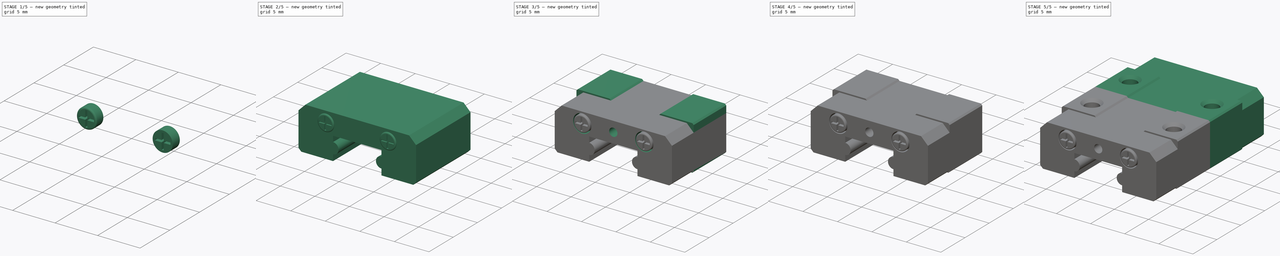
[diagram: build sequence overview — one tinted view per stage of 5, left to right]
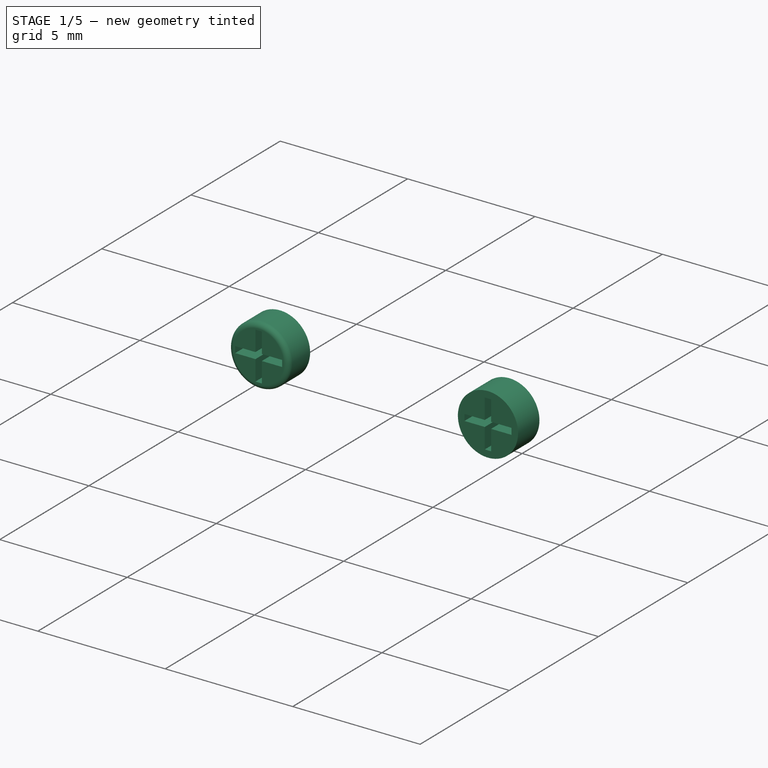
[diagram: stage 1 of 5 — iso view after this stage's code; geometry added in this stage tinted green]
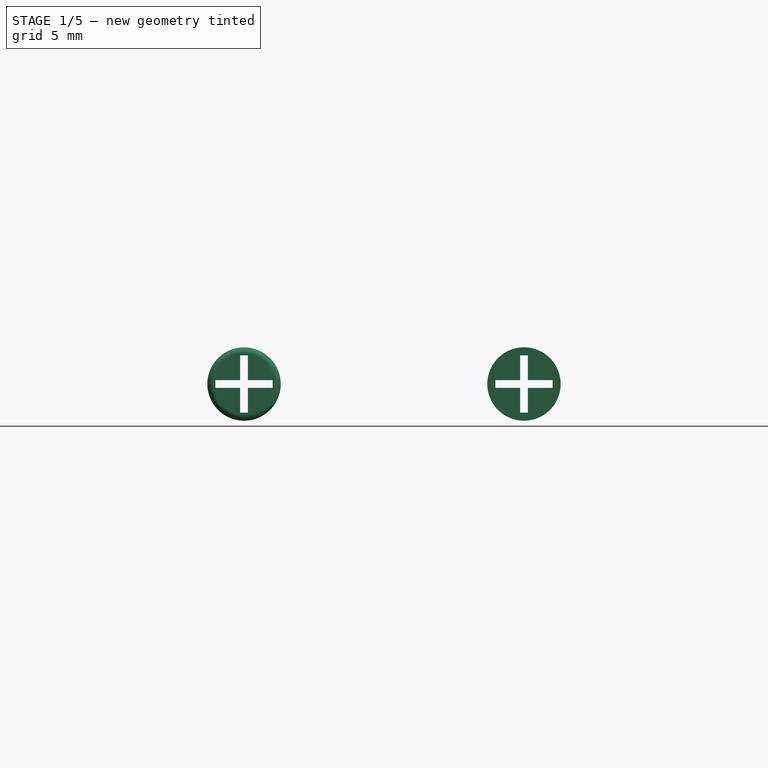
[diagram: stage 1 of 5 — front view after this stage's code; geometry added in this stage tinted green]
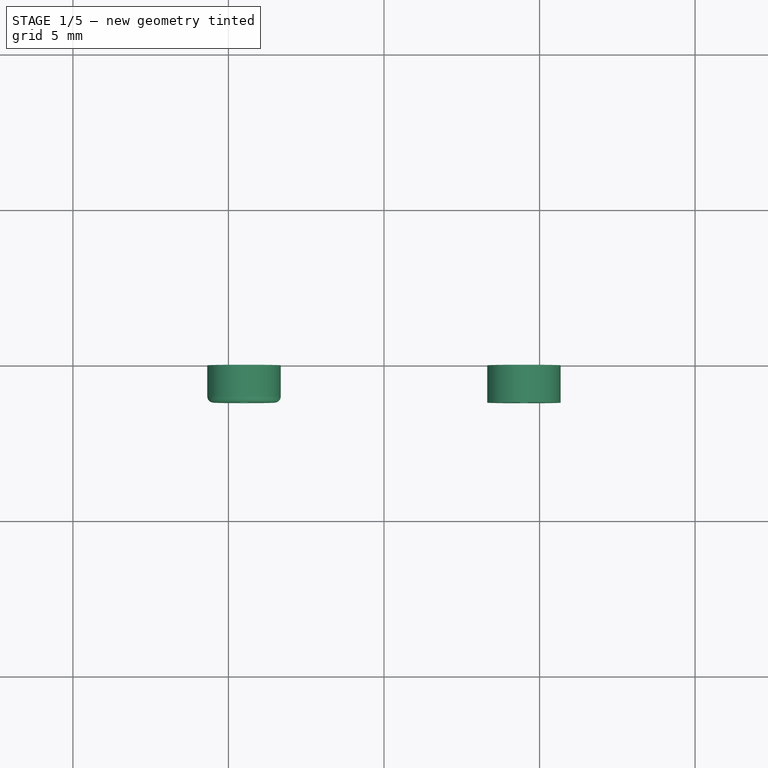
[diagram: stage 1 of 5 — top view after this stage's code; geometry added in this stage tinted green]
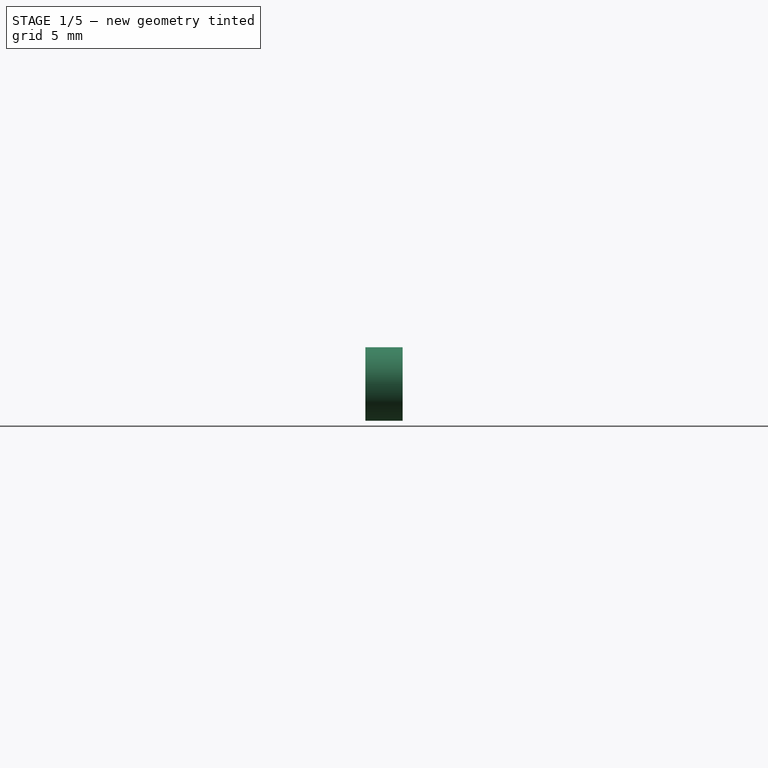
[diagram: stage 1 of 5 — right view after this stage's code; geometry added in this stage tinted green]
FCSTD DOCUMENT  (FreeCAD 0.20R)
Label: LinearSlide-MGN7-12x-Block
License: Creative Commons Attribution-ShareAlike
LicenseURL: http://creativecommons.org/licenses/by-sa/4.0/
objects: Sketcher::SketchObject×8, PartDesign::Body×5, PartDesign::Pad×4, Part::MultiFuse×4, PartDesign::Pocket×2, PartDesign::Revolution×2, PartDesign::Fillet×2, Spreadsheet::Sheet×1, Part::Cut×1, Part::Mirroring×1
note: 39 computed .brp shape members not serialized (recipe doc carries the construction recipe); baked Part::Feature solids carry a one-line shape summary decoded from their .brp

FEATURE [Sketcher::SketchObject] Sketch009
  FullyConstrained = true
  MapMode = 5
  Placement = pos=(0,0,0) rot=(1,0,0;1.5708rad)
  Support = -> [XZ_Plane004]
  expr: Constraints[0] = <<Set MGN Block Parameters>>.coverScrewDiameter - 0.3mm
  expr: Constraints[1] = <<Set MGN Block Parameters>>.coverScrewHeight
  expr: Constraints[2] = <<Set MGN Block Parameters>>.coverScrewLength / 2
  expr: Constraints[3] = <<Set MGN Block Parameters>>.coverScrewDiameter - 0.8mm
  expr: Constraints[4] = <<Set MGN Block Parameters>>.coverScrewHeight
  expr: Constraints[5] = <<Set MGN Block Parameters>>.coverScrewLength / 2
  sketch-geometry (14):
    g0: Circle CenterX=-4.5 CenterY=4.75 CenterZ=0 NormalX=0 NormalY=0 NormalZ=1 AngleXU=0 Radius=1.18
    g1: Circle CenterX=-4.5 CenterY=4.75 CenterZ=0 NormalX=0 NormalY=0 NormalZ=1 AngleXU=0 Radius=0.93
    g2: LineSegment StartX=-4.625 StartY=5.67156 StartZ=0 EndX=-4.375 EndY=5.67156 EndZ=0
    g3: LineSegment StartX=-4.375 StartY=5.67156 StartZ=0 EndX=-4.375 EndY=4.875 EndZ=0
    g4: LineSegment StartX=-4.375 StartY=4.875 StartZ=0 EndX=-3.57844 EndY=4.875 EndZ=0
    g5: LineSegment StartX=-3.57844 StartY=4.875 StartZ=0 EndX=-3.57844 EndY=4.625 EndZ=0
    g6: LineSegment StartX=-3.57844 StartY=4.625 StartZ=0 EndX=-4.375 EndY=4.625 EndZ=0
    g7: LineSegment StartX=-4.375 StartY=4.625 StartZ=0 EndX=-4.375 EndY=3.82844 EndZ=0
    g8: LineSegment StartX=-4.375 StartY=3.82844 StartZ=0 EndX=-4.625 EndY=3.82844 EndZ=0
    g9: LineSegment StartX=-4.625 StartY=3.82844 StartZ=0 EndX=-4.625 EndY=4.625 EndZ=0
    g10: LineSegment StartX=-4.625 StartY=4.625 StartZ=0 EndX=-5.42156 EndY=4.625 EndZ=0
    g11: LineSegment StartX=-5.42156 StartY=4.625 StartZ=0 EndX=-5.42156 EndY=4.875 EndZ=0
    g12: LineSegment StartX=-5.42156 StartY=4.875 StartZ=0 EndX=-4.625 EndY=4.875 EndZ=0
    g13: LineSegment StartX=-4.625 StartY=4.875 StartZ=0 EndX=-4.625 EndY=5.67156 EndZ=0
  constraints (42):
    c: Diameter(g0) = 2.36
    c: DistanceY(g-1,g0) = 4.75
    c: DistanceX(g0,g-1) = 4.5
    c: Diameter(g1) = 1.86
    c: DistanceY(g-1,g1) = 4.75
    c: DistanceX(g1,g-1) = 4.5
    c: Horizontal(g2)
    c: Coincident(g2,g3)
    c: Vertical(g3)
    c: Coincident(g3,g4)
    c: Horizontal(g4)
    c: Coincident(g4,g5)
    c: Vertical(g5)
    c: Coincident(g5,g6)
    c: Horizontal(g6)
    c: Coincident(g6,g7)
    c: Vertical(g7)
    c: Coincident(g7,g8)
    c: Horizontal(g8)
    c: Coincident(g8,g9)
    c: Vertical(g9)
    c: Coincident(g9,g10)
    c: Horizontal(g10)
    c: Coincident(g10,g11)
    c: Vertical(g11)
    c: Coincident(g11,g12)
    c: Horizontal(g12)
    c: Coincident(g12,g13)
    c: Coincident(g13,g2)
    c: Vertical(g13)
    c: Equal(g8,g5)
    c: Equal(g5,g2)
    c: Equal(g2,g11)
    c: DistanceY(g11,g11) = 0.25
    c: PointOnObject(g7,g1)
    c: PointOnObject(g8,g1)
    c: PointOnObject(g10,g1)
    c: PointOnObject(g11,g1)
    c: PointOnObject(g2,g1)
    c: PointOnObject(g2,g1)
    c: PointOnObject(g4,g1)
    c: PointOnObject(g5,g1)
FEATURE [PartDesign::Pad] Pad003
  Direction = (0,-1,-2e-16)
  Length = 1.2
  Length2 = 10
  Placement = pos=(0,0,0) rot=(1,0,0;1.5708rad)
  Profile = -> Sketch009
  ReferenceAxis = -> Sketch009 [N_Axis]
  Type = 0
FEATURE [Sketcher::SketchObject] Sketch008
  FullyConstrained = true
  MapMode = 5
  Placement = pos=(0,0,0) rot=(1,0,0;1.5708rad)
  Support = -> [XZ_Plane003]
  expr: Constraints[0] = <<Set MGN Block Parameters>>.coverScrewDiameter - 0.3mm
  expr: Constraints[1] = <<Set MGN Block Parameters>>.coverScrewHeight
  expr: Constraints[2] = <<Set MGN Block Parameters>>.coverScrewLength / 2 * -1
  expr: Constraints[3] = <<Set MGN Block Parameters>>.coverScrewDiameter - 0.8mm
  expr: Constraints[4] = <<Set MGN Block Parameters>>.coverScrewHeight
  expr: Constraints[5] = <<Set MGN Block Parameters>>.coverScrewLength / 2
  sketch-geometry (14):
    g0: Circle CenterX=4.5 CenterY=4.75 CenterZ=0 NormalX=0 NormalY=0 NormalZ=1 AngleXU=0 Radius=1.18
    g1: Circle CenterX=4.5 CenterY=4.75 CenterZ=0 NormalX=0 NormalY=0 NormalZ=1 AngleXU=0 Radius=0.93
    g2: LineSegment StartX=4.375 StartY=5.67156 StartZ=0 EndX=4.625 EndY=5.67156 EndZ=0
    g3: LineSegment StartX=4.625 StartY=5.67156 StartZ=0 EndX=4.625 EndY=4.875 EndZ=0
    g4: LineSegment StartX=4.625 StartY=4.875 StartZ=0 EndX=5.42156 EndY=4.875 EndZ=0
    g5: LineSegment StartX=5.42156 StartY=4.875 StartZ=0 EndX=5.42156 EndY=4.625 EndZ=0
    g6: LineSegment StartX=5.42156 StartY=4.625 StartZ=0 EndX=4.625 EndY=4.625 EndZ=0
    g7: LineSegment StartX=4.625 StartY=4.625 StartZ=0 EndX=4.625 EndY=3.82844 EndZ=0
    g8: LineSegment StartX=4.625 StartY=3.82844 StartZ=0 EndX=4.375 EndY=3.82844 EndZ=0
    g9: LineSegment StartX=4.375 StartY=3.82844 StartZ=0 EndX=4.375 EndY=4.625 EndZ=0
    g10: LineSegment StartX=4.375 StartY=4.625 StartZ=0 EndX=3.57844 EndY=4.625 EndZ=0
    g11: LineSegment StartX=3.57844 StartY=4.625 StartZ=0 EndX=3.57844 EndY=4.875 EndZ=0
    g12: LineSegment StartX=3.57844 StartY=4.875 StartZ=0 EndX=4.375 EndY=4.875 EndZ=0
    g13: LineSegment StartX=4.375 StartY=4.875 StartZ=0 EndX=4.375 EndY=5.67156 EndZ=0
  constraints (42):
    c: Diameter(g0) = 2.36
    c: DistanceY(g-1,g0) = 4.75
    c: DistanceX(g0,g-1) = -4.5
    c: Diameter(g1) = 1.86
    c: DistanceY(g-1,g1) = 4.75
    c: DistanceX(g-1,g1) = 4.5
    c: Horizontal(g2)
    c: Coincident(g2,g3)
    c: Vertical(g3)
    c: Coincident(g3,g4)
    c: Horizontal(g4)
    c: Coincident(g4,g5)
    c: Vertical(g5)
    c: Coincident(g5,g6)
    c: Horizontal(g6)
    c: Coincident(g6,g7)
    c: Vertical(g7)
    c: Coincident(g7,g8)
    c: Horizontal(g8)
    c: Coincident(g8,g9)
    c: Vertical(g9)
    c: Coincident(g9,g10)
    c: Horizontal(g10)
    c: Coincident(g10,g11)
    c: Vertical(g11)
    c: Coincident(g11,g12)
    c: Horizontal(g12)
    c: Coincident(g12,g13)
    c: Coincident(g13,g2)
    c: Vertical(g13)
    c: Equal(g8,g5)
    c: Equal(g5,g2)
    c: Equal(g2,g11)
    c: DistanceY(g11,g11) = 0.25
    c: PointOnObject(g8,g1)
    c: PointOnObject(g2,g1)
    c: PointOnObject(g2,g1)
    c: PointOnObject(g4,g1)
    c: PointOnObject(g5,g1)
    c: PointOnObject(g10,g1)
    c: PointOnObject(g11,g1)
    c: PointOnObject(g7,g1)
FEATURE [PartDesign::Pad] Pad004
  Direction = (0,-1,-2e-16)
  Length = 1.2
  Length2 = 10
  Placement = pos=(0,0,0) rot=(1,0,0;1.5708rad)
  Profile = -> Sketch008
  ReferenceAxis = -> Sketch008 [N_Axis]
  Type = 0
FEATURE [PartDesign::Body] Body003  label="Right cover screw"
  Group = -> [Sketch008,Pad004,Fillet]
  Origin = -> Origin003
  Placement = pos=(0,-10.25,0) rot=(0,0,1;0rad)
  Tip = -> Fillet
  expr: .Placement.Base.y = (<<Set MGN Block Parameters>>.length / 2 - 1mm) * -1
FEATURE [PartDesign::Fillet] Fillet001
  Base = -> Pad003 [Edge3]
  BaseFeature = -> Pad003
  Placement = pos=(0,0,0) rot=(1,0,0;1.5708rad)
  Radius = 0.2
  SupportTransform = false
  UseAllEdges = false
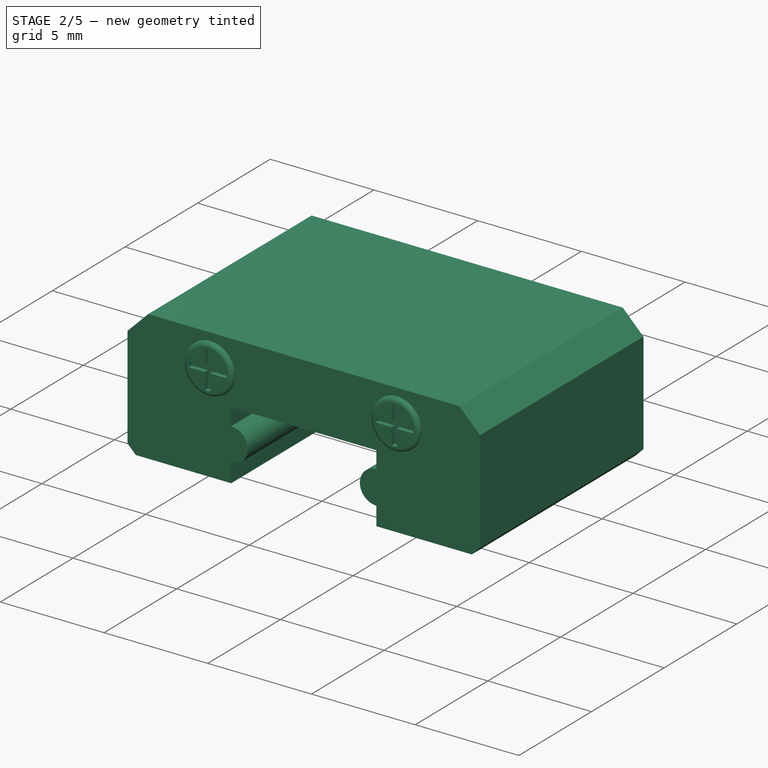
[diagram: stage 2 of 5 — iso view after this stage's code; geometry added in this stage tinted green]
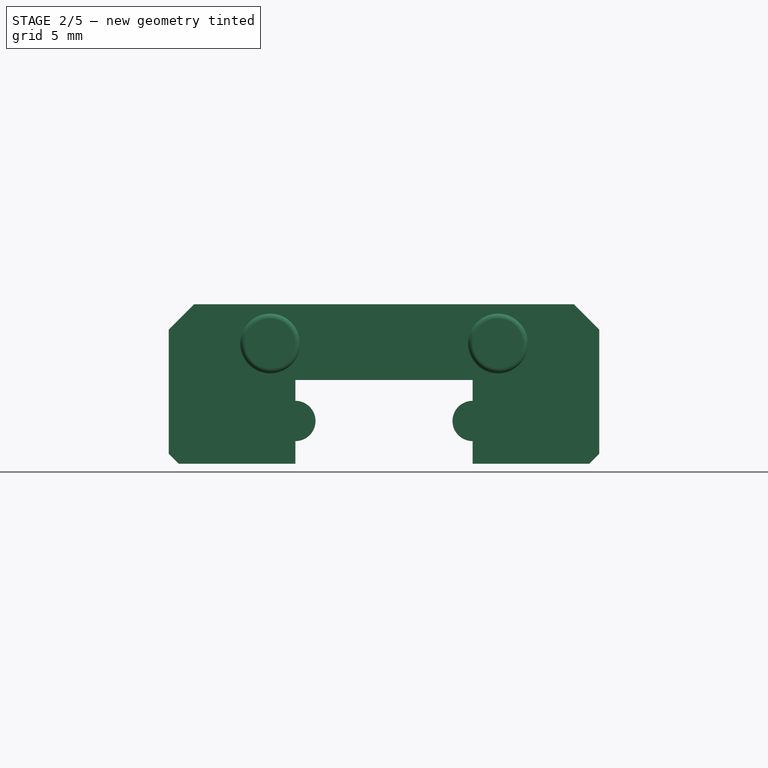
[diagram: stage 2 of 5 — front view after this stage's code; geometry added in this stage tinted green]
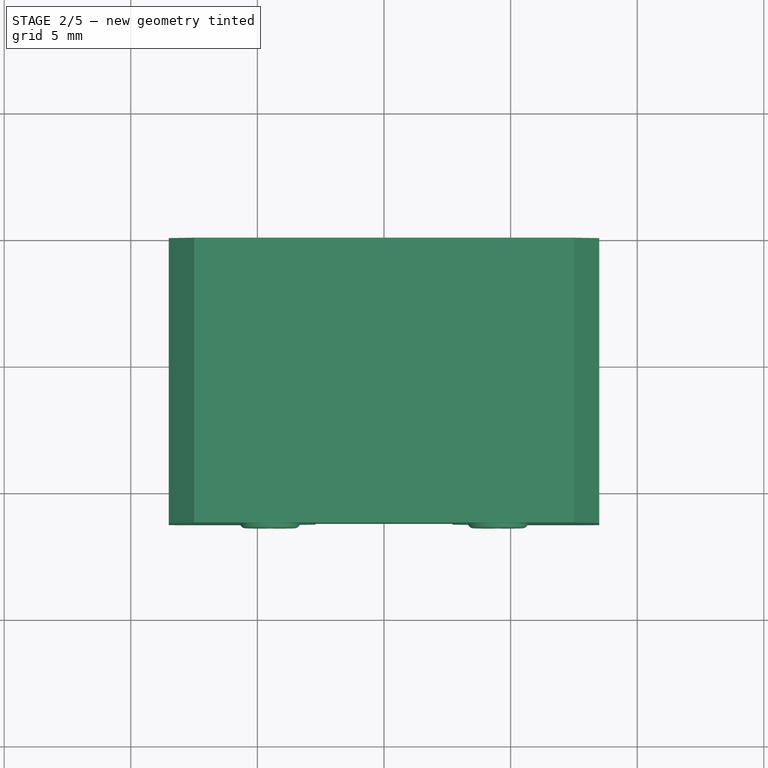
[diagram: stage 2 of 5 — top view after this stage's code; geometry added in this stage tinted green]
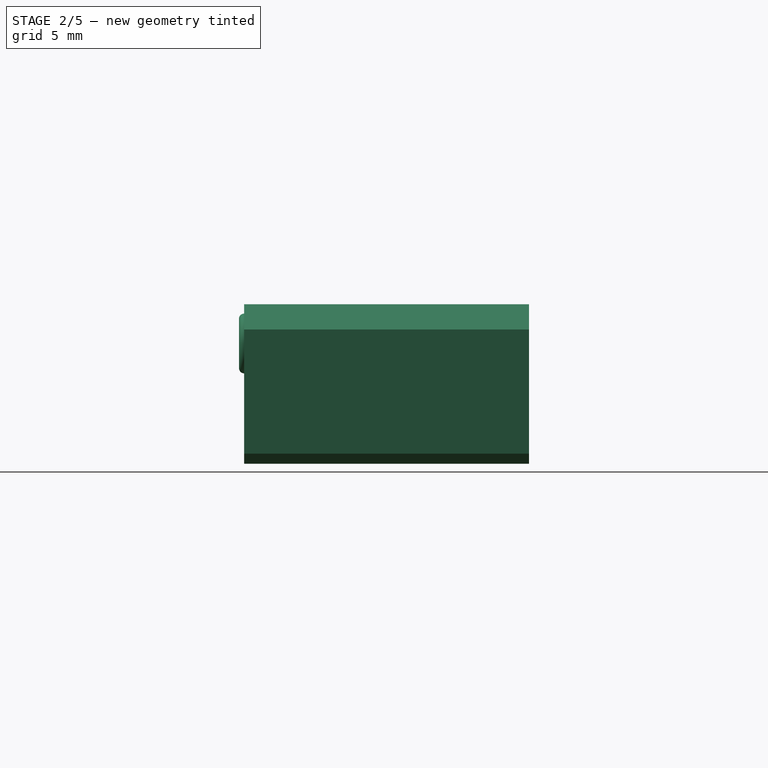
[diagram: stage 2 of 5 — right view after this stage's code; geometry added in this stage tinted green]
FEATURE [Sketcher::SketchObject] Sketch  label="Block main section"
  FullyConstrained = true
  MapMode = 5
  Placement = pos=(0,0,0) rot=(1,0,0;1.5708rad)
  Support = -> [XZ_Plane]
  expr: Constraints[16] = <<Set MGN Block Parameters>>.width - <<Set MGN Block Parameters>>.slideWidth * 2
  expr: Constraints[18] = <<Set MGN Block Parameters>>.slideWidth - <<Set MGN Block Parameters>>.coverChanfer2
  expr: Constraints[20] = <<Set MGN Block Parameters>>.bearingHeinght
  expr: Constraints[21] = <<Set MGN Block Parameters>>.railGapHeinght
  expr: Constraints[26] = <<Set MGN Block Parameters>>.overalHeight
  expr: Constraints[27] = <<Set MGN Block Parameters>>.width
  expr: Constraints[28] = <<Set MGN Block Parameters>>.coverChanfer
  expr: Constraints[29] = <<Set MGN Block Parameters>>.coverChanfer
  expr: Constraints[39] = <<Set MGN Block Parameters>>.coverChanfer2
  expr: Constraints[40] = <<Set MGN Block Parameters>>.width - <<Set MGN Block Parameters>>.slideWidth * 2
  expr: Constraints[7] = <<Set MGN Block Parameters>>.bearingDiameter / 2
  sketch-geometry (16):
    g0: LineSegment StartX=-8.1 StartY=0 StartZ=0 EndX=-3.5 EndY=0 EndZ=0
    g1: LineSegment StartX=-3.5 StartY=0 StartZ=0 EndX=-3.5 EndY=0.895 EndZ=0
    g2: LineSegment StartX=-3.5 StartY=3.31 StartZ=0 EndX=3.5 EndY=3.31 EndZ=0
    g3: LineSegment StartX=3.5 StartY=3.31 StartZ=0 EndX=3.5 EndY=2.485 EndZ=0
    g4: LineSegment StartX=3.5 StartY=0 StartZ=0 EndX=8.1 EndY=0 EndZ=0
    g5: ArcOfCircle CenterX=-3.5 CenterY=1.69 CenterZ=0 NormalX=0 NormalY=0 NormalZ=1 AngleXU=0 Radius=0.795 StartAngle=4.71239 EndAngle=7.85398
    g6: ArcOfCircle CenterX=3.5 CenterY=1.69 CenterZ=0 NormalX=0 NormalY=0 NormalZ=1 AngleXU=0 Radius=0.795 StartAngle=1.5708 EndAngle=4.71239
    g7: LineSegment StartX=-3.5 StartY=2.485 StartZ=0 EndX=-3.5 EndY=3.31 EndZ=0
    g8: LineSegment StartX=3.5 StartY=0.895 StartZ=0 EndX=3.5 EndY=0 EndZ=0
    g9: LineSegment StartX=-8.5 StartY=5.3 StartZ=0 EndX=-7.5 EndY=6.3 EndZ=0
    g10: LineSegment StartX=-7.5 StartY=6.3 StartZ=0 EndX=7.5 EndY=6.3 EndZ=0
    g11: LineSegment StartX=7.5 StartY=6.3 StartZ=0 EndX=8.5 EndY=5.3 EndZ=0
    g12: LineSegment StartX=-8.5 StartY=5.3 StartZ=0 EndX=-8.5 EndY=0.4 EndZ=0
    g13: LineSegment StartX=-8.5 StartY=0.4 StartZ=0 EndX=-8.1 EndY=1e-16 EndZ=0
    g14: LineSegment StartX=8.5 StartY=5.3 StartZ=0 EndX=8.5 EndY=0.4 EndZ=0
    g15: LineSegment StartX=8.5 StartY=0.4 StartZ=0 EndX=8.1 EndY=1e-16 EndZ=0
  constraints (42):
    c: Coincident(g0,g1)
    c: Vertical(g1)
    c: Coincident(g8,g4)
    c: Symmetric(g2,g2,g-2)
    c: Symmetric(g7,g3,g-2)
    c: Symmetric(g0,g8,g-2)
    c: Coincident(g2,g3)
    c: Radius(g6) = 0.795
    c: Symmetric(g6,g5,g-2)
    c: PointOnObject(g5,g1)
    c: Coincident(g1,g5)
    c: Coincident(g7,g5)
    c: Coincident(g6,g8)
    c: Coincident(g6,g3)
    c: Symmetric(g6,g1,g-2)
    c: Symmetric(g5,g3,g-2)
    c: DistanceX(g2,g2) = 7
    c: Vertical(g3)
    c: DistanceX(g0,g0) = 4.6
    c: Horizontal(g0)
    c: DistanceY(g0,g5) = 1.69
    c: DistanceY(g4,g2) = 3.31
    c: Coincident(g9,g10)
    c: Coincident(g10,g11)
    c: Symmetric(g11,g9,g-2)
    c: Symmetric(g10,g9,g-2)
    c: DistanceY(g0,g9) = 6.3
    c: DistanceX(g9,g11) = 17
    c: DistanceY(g9,g9) = 1
    c: DistanceX(g9,g9) = 1
    c: Coincident(g9,g12)
    c: Vertical(g12)
    c: Coincident(g12,g13)
    c: Coincident(g13,g0)
    c: Coincident(g11,g14)
    c: Coincident(g14,g15)
    c: Coincident(g15,g4)
    c: Symmetric(g4,g0,g-2)
    c: Symmetric(g14,g12,g-2)
    c: DistanceY(g0,g12) = 0.4
    c: DistanceX(g0,g4) = 7
    c: PointOnObject(g0,g-1)
FEATURE [PartDesign::Pad] Pad
  Direction = (0,-1,-2e-16)
  Length = 11.25
  Length2 = 10
  Placement = pos=(0,0,0) rot=(1,0,0;1.5708rad)
  Profile = -> Sketch
  ReferenceAxis = -> Sketch [N_Axis]
  Type = 0
  expr: Length = <<Set MGN Block Parameters>>.length / 2
FEATURE [PartDesign::Fillet] Fillet
  Base = -> Pad004 [Edge3]
  BaseFeature = -> Pad004
  Placement = pos=(0,0,0) rot=(1,0,0;1.5708rad)
  Radius = 0.2
  SupportTransform = false
  UseAllEdges = false
FEATURE [PartDesign::Body] Body004  label="Left cover screw"
  Group = -> [Sketch009,Pad003,Fillet001]
  Origin = -> Origin004
  Placement = pos=(0,-10.25,0) rot=(0,0,1;0rad)
  Tip = -> Fillet001
  expr: .Placement.Base.y = (<<Set MGN Block Parameters>>.length / 2 - 1mm) * -1
FEATURE [Part::MultiFuse] Fusion001  label="Cover screws"
  Shapes = -> [Body004,Body003]
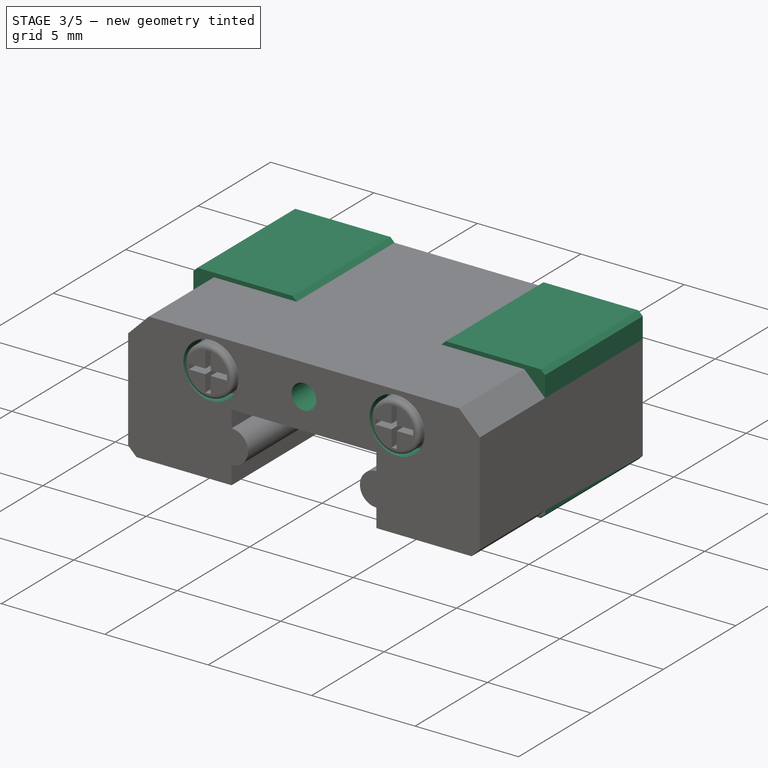
[diagram: stage 3 of 5 — iso view after this stage's code; geometry added in this stage tinted green]
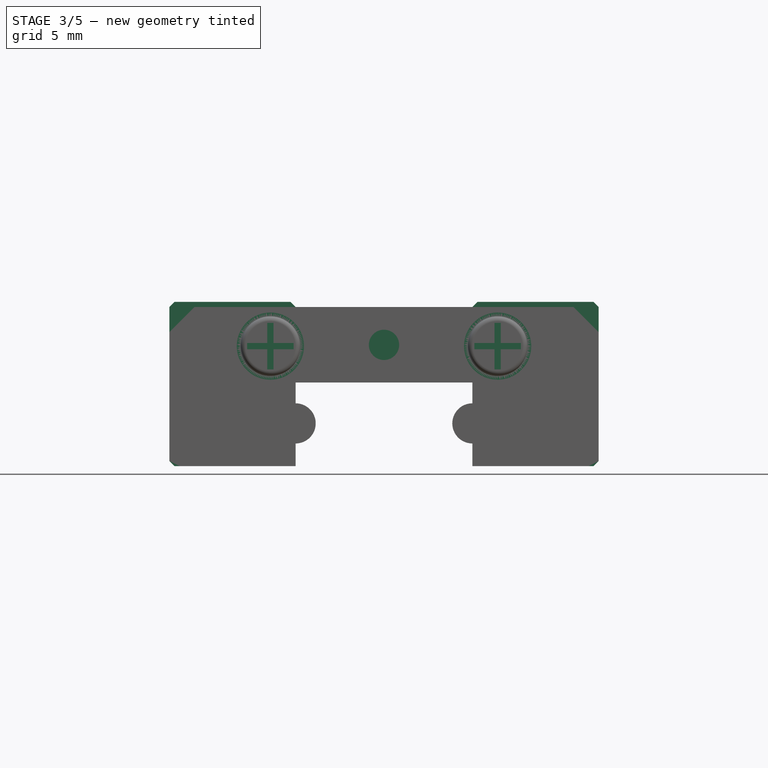
[diagram: stage 3 of 5 — front view after this stage's code; geometry added in this stage tinted green]
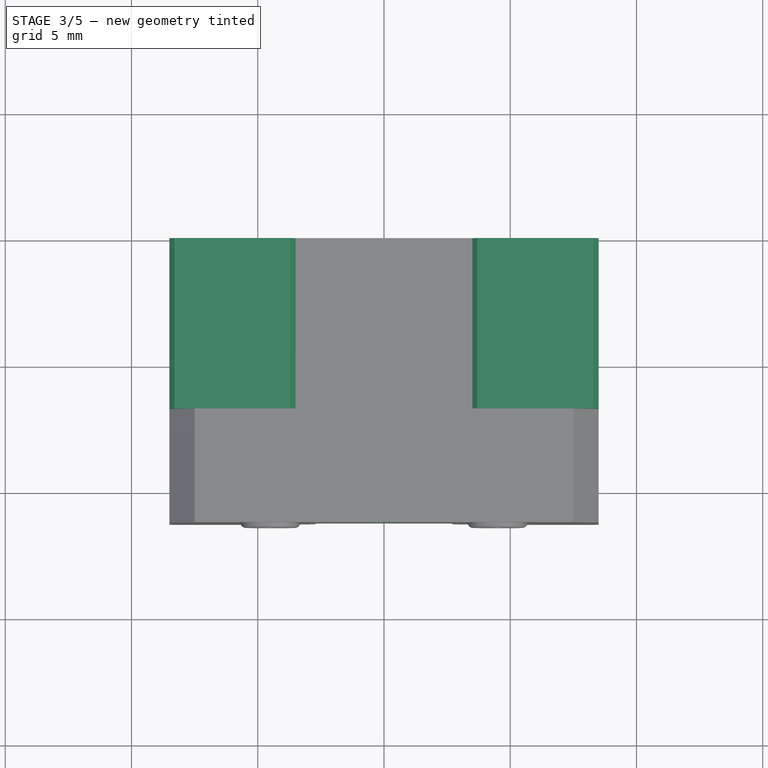
[diagram: stage 3 of 5 — top view after this stage's code; geometry added in this stage tinted green]
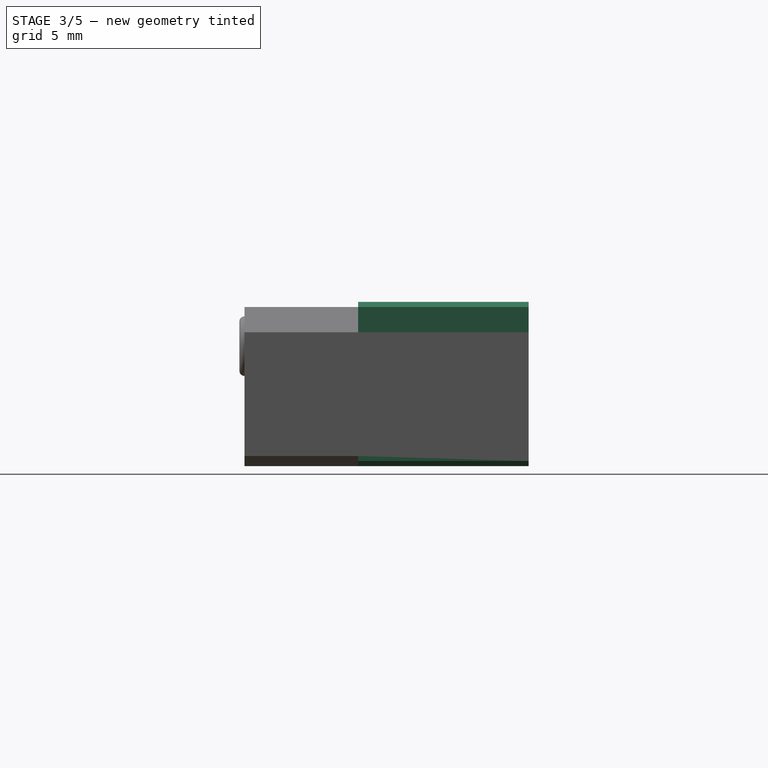
[diagram: stage 3 of 5 — right view after this stage's code; geometry added in this stage tinted green]
FEATURE [Spreadsheet::Sheet] Spreadsheet  label="Set MGN Block Parameters"
  cells = A1=Taken from the datasheet at http://motioncontrolsystems.hiwin.us/Asset/MG-Series-Catalog.pdf; B1=Taken from the datasheet at http://motioncontrolsystems.hiwin.us/Asset/MG-Series-Catalog.pdf; C1=Taken from the datasheet at http://motioncontrolsystems.hiwin.us/Asset/MG-Series-Catalog.pdf; D1=Taken from the datasheet at http://motioncontrolsystems.hiwin.us/Asset/MG-Series-Catalog.pdf; E1=Taken from the datasheet at http://motioncontrolsystems.hiwin.us/Asset/MG-Series-Catalog.pdf; F1=Taken from the datasheet at http://motioncontrolsystems.hiwin.us/Asset/MG-Series-Catalog.pdf; G1=Taken from the datasheet at http://motioncontrolsystems.hiwin.us/Asset/MG-Series-Catalog.pdf; H1=Taken from the datasheet at http://motioncontrolsystems.hiwin.us/Asset/MG-Series-Catalog.pdf; A2=Copy the data corresponding to the desired model in the "SetValues" column; A3=Copia los datos correspondientes al modelo deseado a la columna "SetValues"; A4=Description; B4=Descripción; C4=Parameter; D4=SetValues; E4=MGN7C; F4=MGN7H; G4=MGN9C; H4=MGN9H; I4=MGN12C; J4=MGN12H; A5=Model name; B5=Nombre del modelo; C5=Mn; D5(modelName)=MGN7C; E5=MGN7C; F5=MGN7H; G5=MGN9C; H5=MGN9H; I5=MGN12C; J5=MGN12H; A6=Assembly Height; B6=Altura del ensamblaje; C6=H ; D6(assembliHeight)==8mm; E6==8mm; F6==8mm; G6==10mm; H6==10mm; I6==13mm; J6==13mm; A7=Distance from base to work plane; B7=Distancia de la base al plano de trabajo; C7=H1 ; D7(distanceHeightBase)==1.5mm; E7==1.5mm; F7==1.5mm; G7==2mm; H7==2mm; I7==3mm; J7==3mm; A8=Side width; B8=Ancho del lateral; C8=N ; D8(slideWidth)==5mm; E8==5mm; F8==5mm; G8==5.5mm; H8==5.5mm; I8==7.5mm; J8==7.5mm; A9=Overall width; B9=Ancho total; C9=W ; D9(width)==17mm; E9==17mm; F9==17mm; G9==20mm; H9==20mm; I9==27mm; J9==27mm; A10=Overal Height; B10=Altura toal; C10=oH; D10(overalHeight)==6.3mm; E10==6.3mm; F10==6.3mm; G10==7.7mm; H10==7.7mm; I10==10mm; J10==10mm; A11=Distance between drils; B11=Distancia entre taladros; C11=B ; D11(distanceBetwenDrills1)==12mm; E11==12mm; F11==12mm; G11==15mm; H11==15mm; I11==20mm; J11==20mm; A12=Distance from edge to drill; B12=Distancia del taladro al borde; C12=B1; D12(distanceEdgeToDrill)==2.5mm; E12==2.5mm; F12==2.5mm; G12==2.5mm; H12==2.5mm; I12==3.5mm; J12==3.5mm; A13=Distancia entre taladros 2; B13=Distancia entre taladros 2; C13=C ; D13(distanceBetwenDrills2)==8mm; E13==8mm; F13==13mm; G13==10mm; H13==16mm; I13==15mm; J13==20mm; A14=Metal base length; B14=Longitud base metalica; C14=L1 ; D14(metalLength)==13.5mm; E14==13.5mm; F14==21.8mm; G14==18.9mm; H14==29.9mm; I14==21.7mm; J14==32.4mm; A15=Total length; B15=Longitud total; C15=L ; D15(length)==22.5mm; E15==22.5mm; F15==30.8mm; G15==28.9mm; H15==39.9mm; I15==34.7mm; J15==45.4mm; A16=Grease hole; B16=Orificio de engrase; C16=Gn ; D16(greaseHole)==1.2mm; E16==1.2mm; F16==1.2mm; G16==1.4mm; H16==1.4mm; I16==2mm; J16==2mm; A17=Mounting drills diameter; B17=Diametro tornillos sujeción; C17=SM; D17(screwMetric)==2mm; E17==2mm; F17==2.5mm; G17==3mm; H17==3mm; I17==3mm; J17==3mm; A18=Mounting drill length; B18=Longitud Tornillos de sujeción; C18=SL; D18(screwLength)==2.5mm; E18==2.5mm; F18==2.5mm; G18==3mm; H18==3mm; I18==3.5mm; J18==3.5mm; A19=Mounting countersunk screw; B19=Avellanado tornillo de sujeción; C19=Msc; D19(mountingDrillCountersunk)==0.4mm; E19==0.4mm; F19==0.4mm; G19==0.27mm; H19==0.27mm; I19==0.3mm; J19==0.3mm; A20=Distance from base to grease hole; B20=Distancia orificio engrase a la base; C20=H2 ; D20(distanceGreaseHoleToBase)==4.75mm; E20==4.75mm; F20==4.75mm; G20==5.15mm; H20==5.15mm; I20==7mm; J20==7mm; A21=Rail gap height; B21=Altura hueco rail; C21=Rg; D21(railGapHeinght)==3.31mm; E21==3.31mm; F21==3.31mm; G21==4.69mm; H21==4.69mm; I21==5.4mm; J21==5.4mm; A22=Bearing diameter; B22=Diametro del rodamiento; C22=bD; D22(bearingDiameter)==1.59mm; E22==1.59mm; F22==1.59mm; G22==1.84mm; H22==1.84mm; I22==2.5mm; J22==2.5mm; +100 more cells
FEATURE [Sketcher::SketchObject] Sketch001
  FullyConstrained = true
  MapMode = 5
  Placement = pos=(0,-11.25,-2.5e-15) rot=(1,0,0;1.5708rad)
  Support = -> [Pad]
  expr: Constraints[1] = <<Set MGN Block Parameters>>.greaseHole
  expr: Constraints[2] = <<Set MGN Block Parameters>>.overalHeight - <<Set MGN Block Parameters>>.distanceHeightBase
  sketch-geometry (1):
    g0: Circle CenterX=0 CenterY=4.8 CenterZ=0 NormalX=0 NormalY=0 NormalZ=1 AngleXU=0 Radius=0.6
  constraints (3):
    c: PointOnObject(g0,g-2)
    c: Diameter(g0) = 1.2
    c: DistanceY(g-1,g0) = 4.8
FEATURE [PartDesign::Pocket] Pocket
  BaseFeature = -> Pad
  Direction = (0,1,2e-16)
  Length = 3
  Length2 = 5
  Placement = pos=(0,0,0) rot=(1,0,0;1.5708rad)
  Profile = -> Sketch001
  ReferenceAxis = -> Sketch001 [N_Axis]
  Type = 0
FEATURE [Sketcher::SketchObject] Sketch002
  FullyConstrained = true
  MapMode = 5
  Placement = pos=(0,-11.25,-2.5e-15) rot=(1,0,0;1.5708rad)
  Support = -> [Pocket]
  expr: Constraints[2] = <<Set MGN Block Parameters>>.coverScrewDiameter
  expr: Constraints[3] = <<Set MGN Block Parameters>>.coverScrewHeight
  expr: Constraints[4] = <<Set MGN Block Parameters>>.coverScrewLength
  sketch-geometry (2):
    g0: Circle CenterX=-4.5 CenterY=4.75 CenterZ=0 NormalX=0 NormalY=0 NormalZ=1 AngleXU=0 Radius=1.33
    g1: Circle CenterX=4.5 CenterY=4.75 CenterZ=0 NormalX=0 NormalY=0 NormalZ=1 AngleXU=0 Radius=1.33
  constraints (5):
    c: Symmetric(g1,g0,g-2)
    c: Equal(g0,g1)
    c: Diameter(g0) = 2.66
    c: DistanceY(g-1,g0) = 4.75
    c: DistanceX(g0,g1) = 9
FEATURE [PartDesign::Pocket] Pocket001
  BaseFeature = -> Pocket
  Direction = (0,1,2e-16)
  Length = 1
  Length2 = 5
  Placement = pos=(0,0,0) rot=(1,0,0;1.5708rad)
  Profile = -> Sketch002
  ReferenceAxis = -> Sketch002 [N_Axis]
  Type = 0
FEATURE [PartDesign::Body] Body002  label="Left Drill"
  Group = -> [Sketch006,Revolution001]
  Origin = -> Origin002
  Placement = pos=(-6,-4,0) rot=(0,0,1;0rad)
  Tip = -> Revolution001
  expr: .Placement.Base.x = (<<Set MGN Block Parameters>>.width / 2 - <<Set MGN Block Parameters>>.distanceEdgeToDrill) * -1
  expr: .Placement.Base.y = <<Set MGN Block Parameters>>.distanceBetwenDrills2 / 2 * -1
FEATURE [Sketcher::SketchObject] Sketch007
  FullyConstrained = true
  MapMode = 5
  Placement = pos=(0,0,0) rot=(-1,0,0;1.5708rad)
  Support = -> [Pocket001]
  expr: Constraints[29] = <<Set MGN Block Parameters>>.width - 2 * <<Set MGN Block Parameters>>.slideWidth
  expr: Constraints[30] = <<Set MGN Block Parameters>>.width - 2 * <<Set MGN Block Parameters>>.slideWidth
  expr: Constraints[31] = <<Set MGN Block Parameters>>.slideWidth
  expr: Constraints[32] = <<Set MGN Block Parameters>>.standChanfer2
  expr: Constraints[33] = <<Set MGN Block Parameters>>.standChanfer2
  expr: Constraints[35] = <<Set MGN Block Parameters>>.railGapHeinght
  expr: Constraints[36] = <<Set MGN Block Parameters>>.overalHeight
  expr: Constraints[37] = <<Set MGN Block Parameters>>.standChanfer
  expr: Constraints[38] = <<Set MGN Block Parameters>>.standChanfer
  expr: Constraints[40] = <<Set MGN Block Parameters>>.standWidth
  sketch-geometry (16):
    g0: LineSegment StartX=-3.5 StartY=0 StartZ=0 EndX=-8.3 EndY=0 EndZ=0
    g1: LineSegment StartX=-8.3 StartY=0 StartZ=0 EndX=-8.5 EndY=-0.2 EndZ=0
    g2: LineSegment StartX=-8.5 StartY=-0.2 StartZ=0 EndX=-8.5 EndY=-6.3 EndZ=0
    g3: LineSegment StartX=-8.5 StartY=-6.3 StartZ=0 EndX=-8.3 EndY=-6.5 EndZ=0
    g4: LineSegment StartX=-8.3 StartY=-6.5 StartZ=0 EndX=-3.7 EndY=-6.5 EndZ=0
    g5: LineSegment StartX=-3.7 StartY=-6.5 StartZ=0 EndX=-3.5 EndY=-6.3 EndZ=0
    g6: LineSegment StartX=-3.5 StartY=-6.3 StartZ=0 EndX=3.5 EndY=-6.3 EndZ=0
    g7: LineSegment StartX=3.5 StartY=-6.3 StartZ=0 EndX=3.7 EndY=-6.5 EndZ=0
    g8: LineSegment StartX=3.7 StartY=-6.5 StartZ=0 EndX=8.3 EndY=-6.5 EndZ=0
    g9: LineSegment StartX=8.3 StartY=-6.5 StartZ=0 EndX=8.5 EndY=-6.3 EndZ=0
    g10: LineSegment StartX=8.5 StartY=-6.3 StartZ=0 EndX=8.5 EndY=-0.2 EndZ=0
    g11: LineSegment StartX=8.5 StartY=-0.2 StartZ=0 EndX=8.3 EndY=0 EndZ=0
    g12: LineSegment StartX=8.3 StartY=0 StartZ=0 EndX=3.5 EndY=0 EndZ=0
    g13: LineSegment StartX=3.5 StartY=0 StartZ=0 EndX=3.5 EndY=-3.31 EndZ=0
    g14: LineSegment StartX=3.5 StartY=-3.31 StartZ=0 EndX=-3.5 EndY=-3.31 EndZ=0
    g15: LineSegment StartX=-3.5 StartY=-3.31 StartZ=0 EndX=-3.5 EndY=0 EndZ=0
  constraints (41):
    c: Horizontal(g0)
    c: Coincident(g0,g1)
    c: Coincident(g1,g2)
    c: Vertical(g2)
    c: Coincident(g2,g3)
    c: Coincident(g3,g4)
    c: Horizontal(g4)
    c: Coincident(g4,g5)
    c: Coincident(g5,g6)
    c: Coincident(g6,g7)
    c: Coincident(g7,g8)
    c: Coincident(g8,g9)
    c: Coincident(g9,g10)
    c: Coincident(g10,g11)
    c: Coincident(g11,g12)
    c: Coincident(g12,g13)
    c: Vertical(g13)
    c: Coincident(g13,g14)
    c: Horizontal(g14)
    c: Coincident(g14,g15)
    c: Coincident(g15,g0)
    c: Vertical(g15)
    c: Symmetric(g5,g6,g-2)
    c: Symmetric(g4,g7,g-2)
    c: Symmetric(g3,g8,g-2)
    c: Symmetric(g1,g10,g-2)
    c: Symmetric(g2,g9,g-2)
    c: Symmetric(g0,g11,g-2)
    c: Symmetric(g12,g0,g-2)
    c: DistanceX(g0,g12) = 7
    c: DistanceX(g6,g6) = 7
    c: DistanceX(g1,g0) = 5
    c: DistanceX(g1,g0) = 0.2
    c: DistanceY(g1,g0) = 0.2
    c: PointOnObject(g0,g-1)
    c: DistanceY(g13,g13) = 3.31
    c: DistanceY(g2,g0) = 6.3
    c: DistanceY(g3,g2) = 0.2
    c: DistanceX(g2,g3) = 0.2
    c: Angle(g5,g6) = 2.35619
    c: DistanceX(g2,g4) = 4.8
FEATURE [PartDesign::Pad] Pad001
  BaseFeature = -> Pocket001
  Direction = (0,1,2e-16)
  Length = 6.75
  Length2 = 10
  Placement = pos=(0,0,0) rot=(1,0,0;1.5708rad)
  Profile = -> Sketch007
  ReferenceAxis = -> Sketch007 [N_Axis]
  Reversed = true
  Type = 0
  expr: Length = <<Set MGN Block Parameters>>.metalLength / 2
FEATURE [Part::MultiFuse] Fusion002  label="Main block with cover screws"
  Shapes = -> [Fusion001,Body]
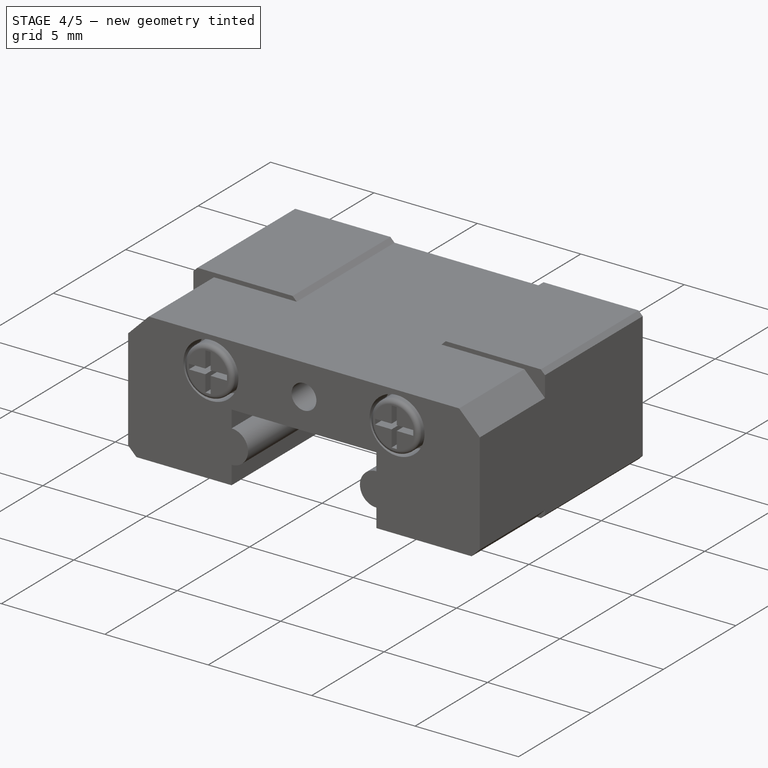
[diagram: stage 4 of 5 — iso view after this stage's code; geometry added in this stage tinted green]
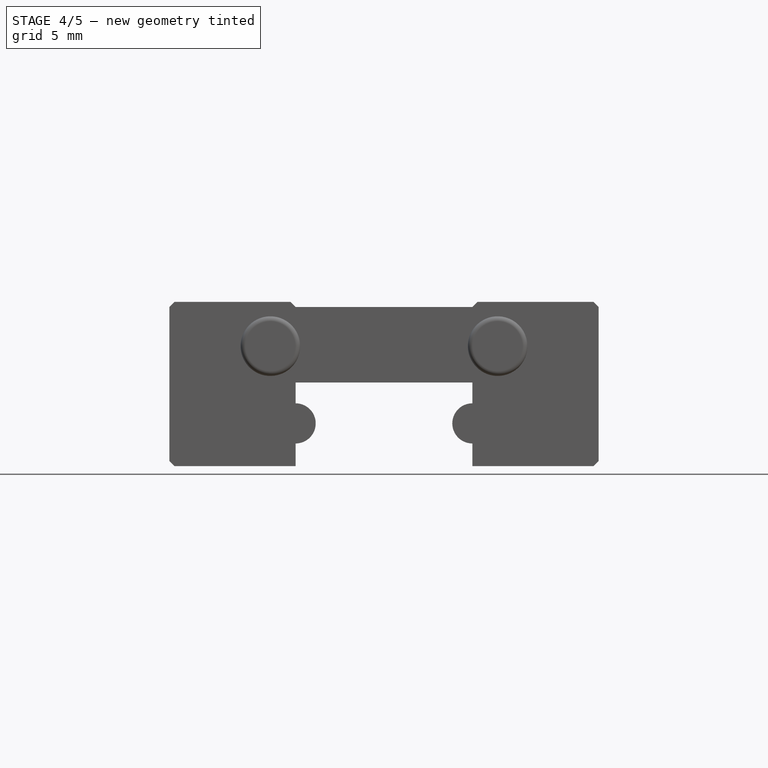
[diagram: stage 4 of 5 — front view after this stage's code; geometry added in this stage tinted green]
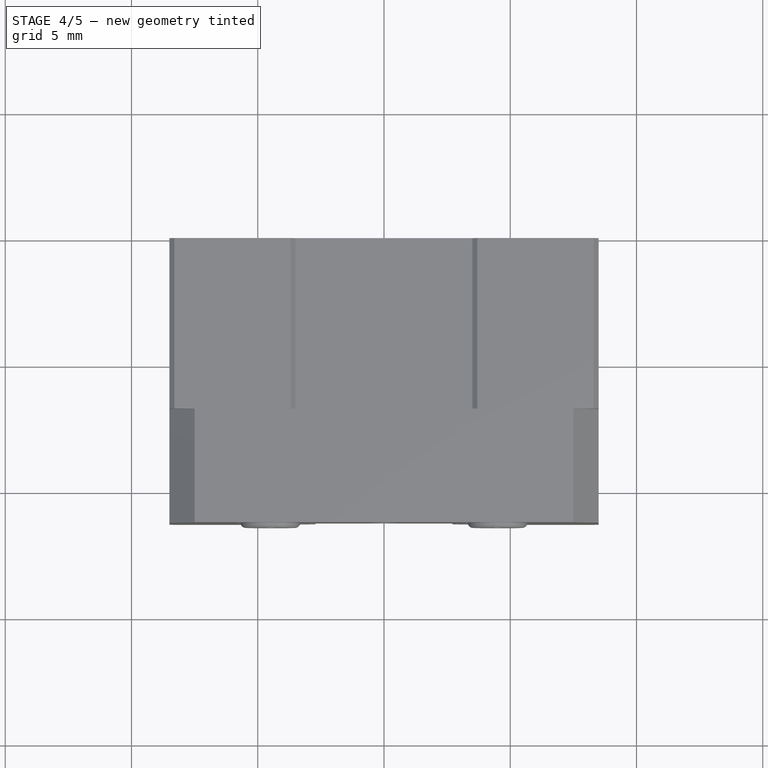
[diagram: stage 4 of 5 — top view after this stage's code; geometry added in this stage tinted green]
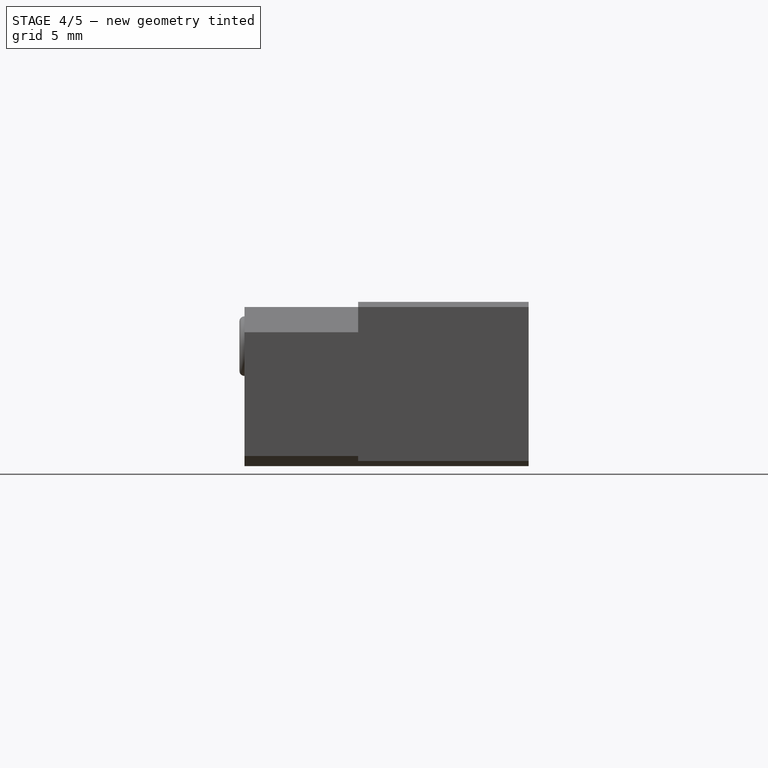
[diagram: stage 4 of 5 — right view after this stage's code; geometry added in this stage tinted green]
FEATURE [Sketcher::SketchObject] Sketch005
  FullyConstrained = true
  MapMode = 5
  Placement = pos=(0,0,0) rot=(1,0,0;1.5708rad)
  Support = -> [XZ_Plane001]
  expr: Constraints[11] = <<Set MGN Block Parameters>>.mountingDrillCountersunk
  expr: Constraints[12] = <<Set MGN Block Parameters>>.mountingDrillCountersunk
  expr: Constraints[13] = <<Set MGN Block Parameters>>.overalHeight + <<Set MGN Block Parameters>>.standChanfer
  expr: Constraints[8] = <<Set MGN Block Parameters>>.screwMetric / 2
  expr: Constraints[9] = <<Set MGN Block Parameters>>.screwLength
  sketch-geometry (5):
    g0: LineSegment StartX=1 StartY=6.1 StartZ=0 EndX=1 EndY=4.60086 EndZ=0
    g1: LineSegment StartX=1 StartY=4.60086 StartZ=0 EndX=1e-16 EndY=4 EndZ=0
    g2: LineSegment StartX=0 StartY=4 StartZ=0 EndX=0 EndY=6.5 EndZ=0
    g3: LineSegment StartX=0 StartY=6.5 StartZ=0 EndX=1.4 EndY=6.5 EndZ=0
    g4: LineSegment StartX=1.4 StartY=6.5 StartZ=0 EndX=1 EndY=6.1 EndZ=0
  constraints (15):
    c: Coincident(g0,g1)
    c: Coincident(g1,g2)
    c: Vertical(g2)
    c: Coincident(g2,g3)
    c: Horizontal(g3)
    c: Coincident(g3,g4)
    c: Coincident(g4,g0)
    c: Parallel(g0,g2)
    c: DistanceX(g2,g0) = 1
    c: DistanceY(g2,g2) = 2.5
    c: Angle(g1,g2) = 1.02974
    c: DistanceY(g0,g3) = 0.4
    c: DistanceX(g0,g3) = 0.4
    c: DistanceY(g-1,g3) = 6.5
    c: PointOnObject(g1,g-2)
FEATURE [PartDesign::Revolution] Revolution
  Angle = 360
  Axis = (0,-2e-16,1)
  Base = (0,0,0)
  Placement = pos=(0,0,0) rot=(1,0,0;1.5708rad)
  Profile = -> Sketch005
  ReferenceAxis = -> Sketch005 [V_Axis]
  Reversed = true
FEATURE [PartDesign::Body] Body001  label="Right Drill"
  Group = -> [Sketch005,Revolution]
  Origin = -> Origin001
  Placement = pos=(6,-4,0) rot=(0,0,1;0rad)
  Tip = -> Revolution
  expr: .Placement.Base.x = <<Set MGN Block Parameters>>.width / 2 - <<Set MGN Block Parameters>>.distanceEdgeToDrill
  expr: .Placement.Base.y = <<Set MGN Block Parameters>>.distanceBetwenDrills2 / 2 * -1
FEATURE [Sketcher::SketchObject] Sketch006
  FullyConstrained = true
  MapMode = 5
  Placement = pos=(0,0,0) rot=(1,0,0;1.5708rad)
  Support = -> [XZ_Plane002]
  expr: Constraints[10] = <<Set MGN Block Parameters>>.screwLength
  expr: Constraints[11] = <<Set MGN Block Parameters>>.screwMetric / 2
  expr: Constraints[12] = <<Set MGN Block Parameters>>.mountingDrillCountersunk
  expr: Constraints[13] = <<Set MGN Block Parameters>>.mountingDrillCountersunk
  expr: Constraints[9] = <<Set MGN Block Parameters>>.overalHeight + <<Set MGN Block Parameters>>.standChanfer
  sketch-geometry (5):
    g0: LineSegment StartX=1.4 StartY=6.5 StartZ=0 EndX=0 EndY=6.5 EndZ=0
    g1: LineSegment StartX=0 StartY=6.5 StartZ=0 EndX=0 EndY=4 EndZ=0
    g2: LineSegment StartX=0 StartY=4 StartZ=0 EndX=1 EndY=4.60086 EndZ=0
    g3: LineSegment StartX=1 StartY=4.60086 StartZ=0 EndX=1 EndY=6.1 EndZ=0
    g4: LineSegment StartX=1 StartY=6.1 StartZ=0 EndX=1.4 EndY=6.5 EndZ=0
  constraints (15):
    c: Coincident(g0,g1)
    c: Coincident(g1,g2)
    c: Coincident(g2,g3)
    c: Coincident(g3,g4)
    c: Coincident(g4,g0)
    c: Vertical(g1)
    c: Horizontal(g0)
    c: Parallel(g3,g1)
    c: Angle(g2,g1) = 1.02974
    c: DistanceY(g-1,g0) = 6.5
    c: DistanceY(g1,g0) = 2.5
    c: DistanceX(g0,g3) = 1
    c: DistanceX(g3,g0) = 0.4
    c: DistanceY(g3,g0) = 0.4
    c: PointOnObject(g1,g-2)
FEATURE [PartDesign::Revolution] Revolution001
  Angle = 360
  Axis = (0,-2e-16,1)
  Base = (0,0,0)
  Placement = pos=(0,0,0) rot=(1,0,0;1.5708rad)
  Profile = -> Sketch006
  ReferenceAxis = -> Sketch006 [V_Axis]
  Reversed = true
FEATURE [PartDesign::Body] Body  label="Main Block"
  Group = -> [Sketch,Pad,Sketch001,Pocket,Sketch002,Pocket001,Sketch007,Pad001]
  Origin = -> Origin
  Tip = -> Pad001
FEATURE [Part::MultiFuse] Fusion  label="Mounting drills"
  Shapes = -> [Body002,Body001]
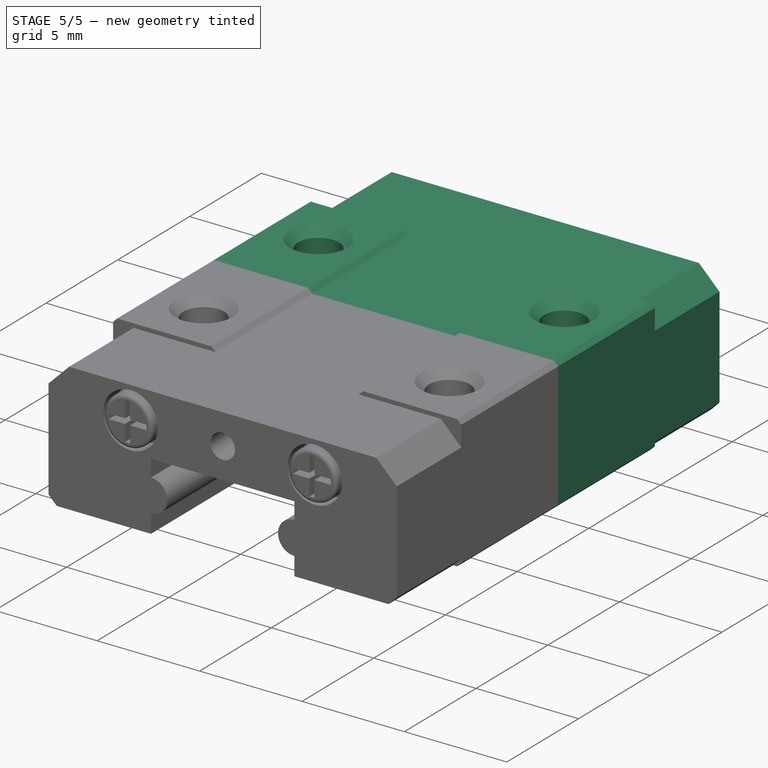
[diagram: stage 5 of 5 — iso view after this stage's code; geometry added in this stage tinted green]
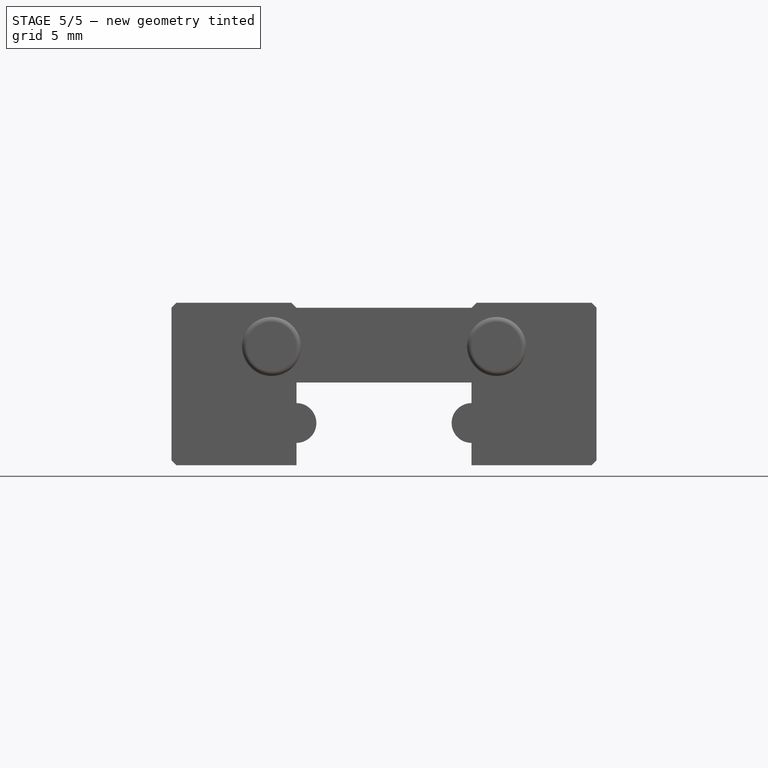
[diagram: stage 5 of 5 — front view after this stage's code; geometry added in this stage tinted green]
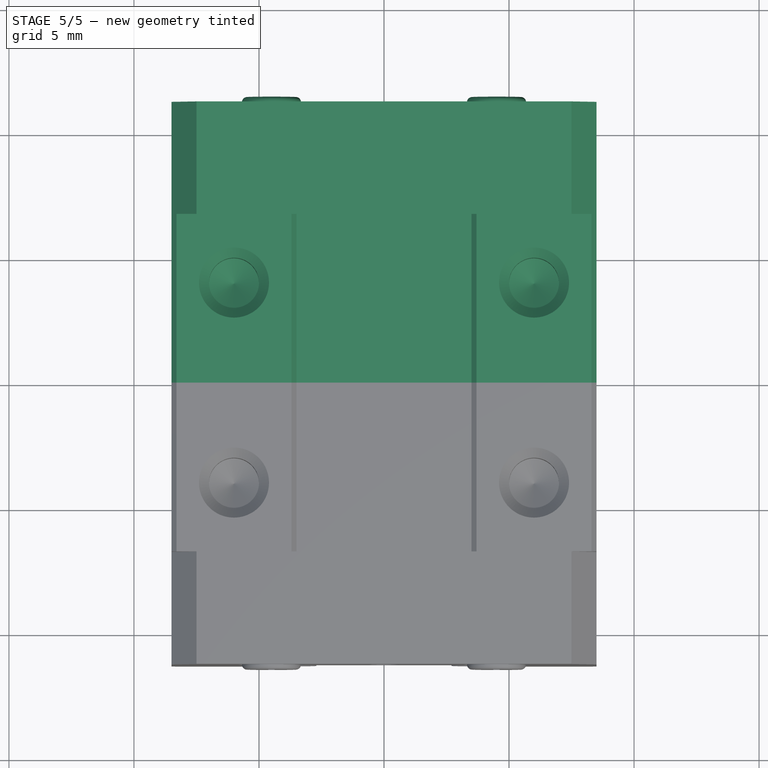
[diagram: stage 5 of 5 — top view after this stage's code; geometry added in this stage tinted green]
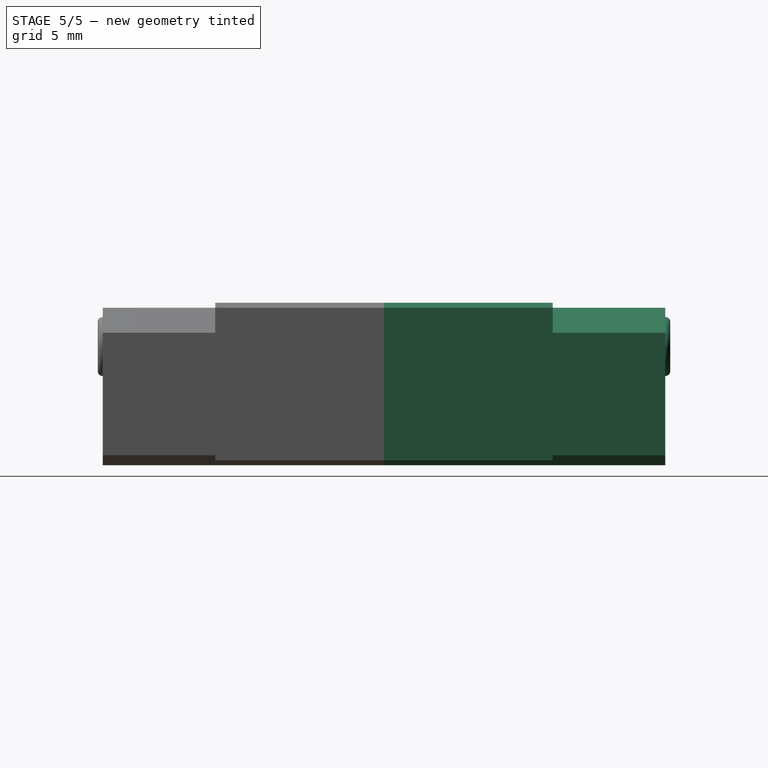
[diagram: stage 5 of 5 — right view after this stage's code; geometry added in this stage tinted green]
FEATURE [Part::Cut] Cut
  Base = -> Fusion002
  Tool = -> Fusion
FEATURE [Part::Mirroring] Part__Mirroring  label="Cut (Mirror #1)"
  Base = (0,0,0)
  Normal = (0,1,0)
  Source = -> Cut
FEATURE [Part::MultiFuse] Fusion003  label="MGN7C"
  Shapes = -> [Cut,Part__Mirroring]
  expr: Label = <<Set MGN Block Parameters>>.modelName
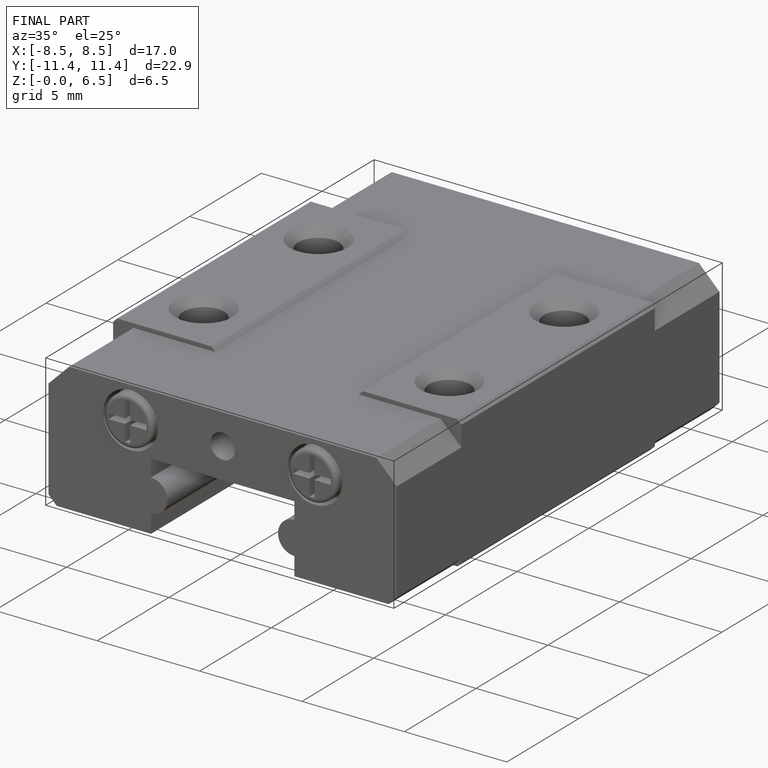
[diagram: finished part — iso view with bounding-box wireframe]
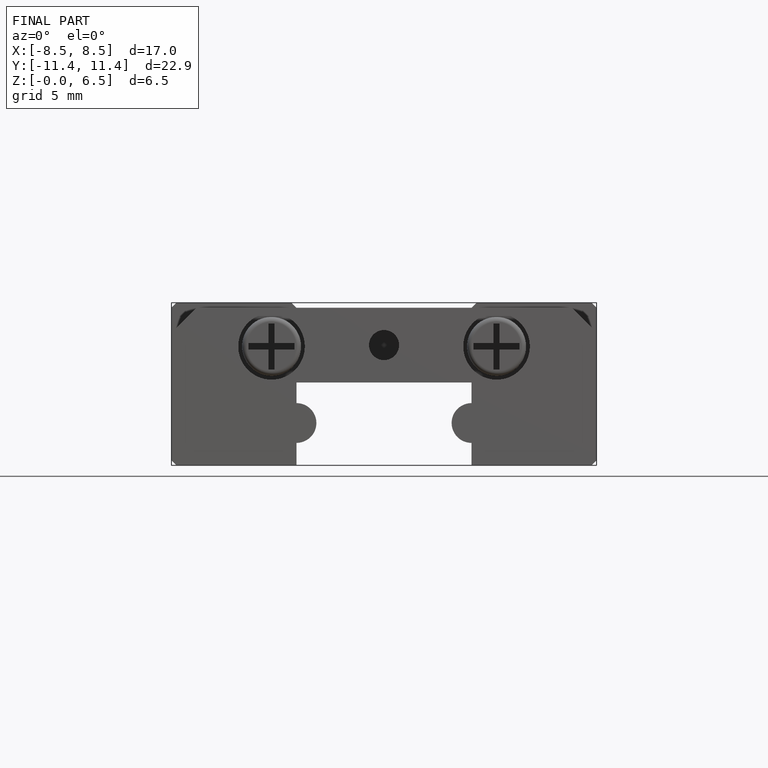
[diagram: finished part — front view with bounding-box wireframe]
